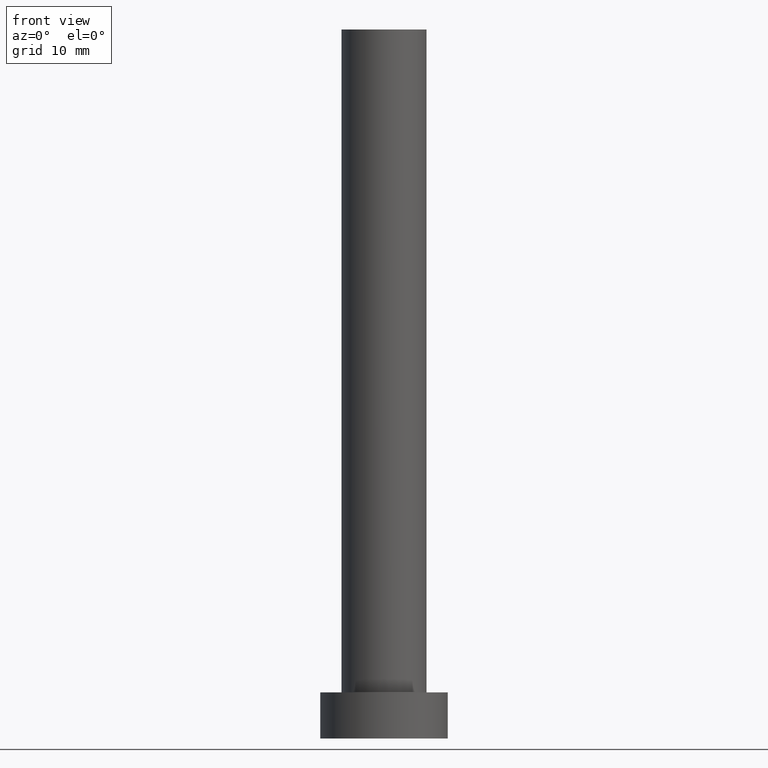
[diagram: clean part render]
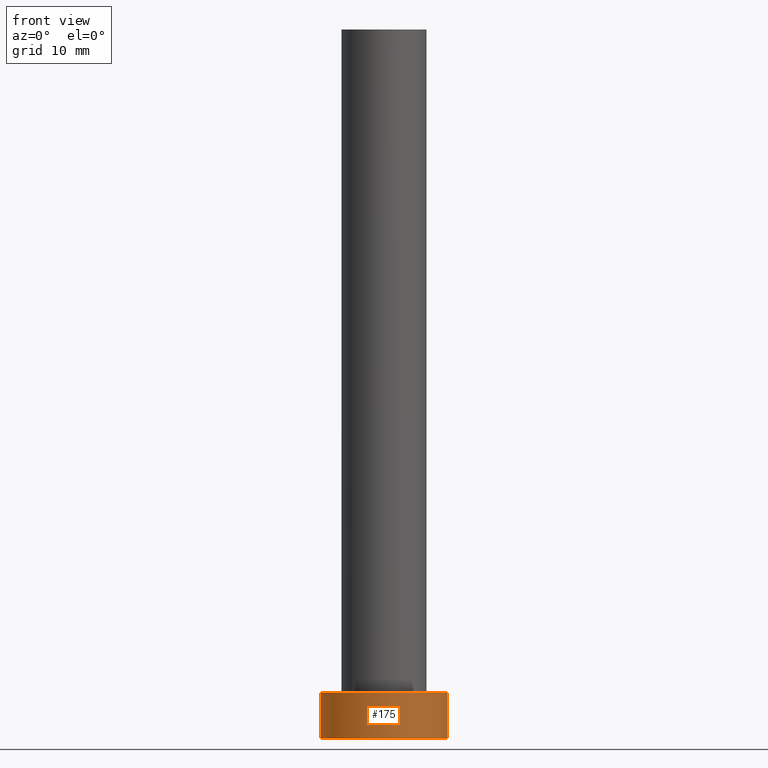
[diagram: same view with one face highlighted and labeled with its STEP entity id]
A machine part, front view. The second image highlights one B-rep face of the part: STEP entity #175.
In plain terms, the highlighted cylindrical surface (partial cylindrical patch) has radius 9 mm, axis along (-0, -0, -1).
Its self-contained STEP definition (entity closure, byte-faithful):
#2 = CARTESIAN_POINT ( 'NONE',  ( 9.000000000000000000, 1.102182119232617517E-15, 6.500000000000000000 ) ) ;
#3 = EDGE_CURVE ( 'NONE', #230, #40, #189, .T. ) ;
#8 = EDGE_CURVE ( 'NONE', #187, #230, #23, .T. ) ;
#12 = EDGE_CURVE ( 'NONE', #75, #40, #44, .T. ) ;
#13 = LINE ( 'NONE', #250, #249 ) ;
#16 = CARTESIAN_POINT ( 'NONE',  ( 9.000000000000000000, 1.102182119232617517E-15, 6.500000000000000000 ) ) ;
#23 = CIRCLE ( 'NONE', #115, 9.000000000000000000 ) ;
#32 = ORIENTED_EDGE ( 'NONE', *, *, #45, .T. ) ;
#34 = DIRECTION ( 'NONE',  ( 0.000000000000000000, 0.000000000000000000, 1.000000000000000000 ) ) ;
#40 = VERTEX_POINT ( 'NONE', #184 ) ;
#44 = CIRCLE ( 'NONE', #196, 9.000000000000000000 ) ;
#45 = EDGE_CURVE ( 'NONE', #187, #75, #13, .T. ) ;
#49 = CARTESIAN_POINT ( 'NONE',  ( -9.000000000000000000, 0.000000000000000000, 6.500000000000000000 ) ) ;
#57 = CARTESIAN_POINT ( 'NONE',  ( 0.000000000000000000, 0.000000000000000000, 6.500000000000000000 ) ) ;
#59 = EDGE_LOOP ( 'NONE', ( #179, #168, #32, #103 ) ) ;
#75 = VERTEX_POINT ( 'NONE', #111 ) ;
#77 = DIRECTION ( 'NONE',  ( -0.000000000000000000, -0.000000000000000000, -1.000000000000000000 ) ) ;
#93 = DIRECTION ( 'NONE',  ( 1.000000000000000000, 0.000000000000000000, 0.000000000000000000 ) ) ;
#103 = ORIENTED_EDGE ( 'NONE', *, *, #12, .T. ) ;
#108 = CARTESIAN_POINT ( 'NONE',  ( 0.000000000000000000, 0.000000000000000000, 0.000000000000000000 ) ) ;
#111 = CARTESIAN_POINT ( 'NONE',  ( -9.000000000000000000, 0.000000000000000000, 0.000000000000000000 ) ) ;
#115 = AXIS2_PLACEMENT_3D ( 'NONE', #57, #34, #124 ) ;
#118 = DIRECTION ( 'NONE',  ( -0.000000000000000000, -0.000000000000000000, -1.000000000000000000 ) ) ;
#124 = DIRECTION ( 'NONE',  ( 1.000000000000000000, 0.000000000000000000, 0.000000000000000000 ) ) ;
#168 = ORIENTED_EDGE ( 'NONE', *, *, #8, .F. ) ;
#173 = CYLINDRICAL_SURFACE ( 'NONE', #202, 9.000000000000000000 ) ;
#174 = FACE_OUTER_BOUND ( 'NONE', #59, .T. ) ;
#175 = ADVANCED_FACE ( 'NONE', ( #174 ), #173, .T. ) ;
#179 = ORIENTED_EDGE ( 'NONE', *, *, #3, .F. ) ;
#180 = VECTOR ( 'NONE', #226, 1000.000000000000000 ) ;
#184 = CARTESIAN_POINT ( 'NONE',  ( 9.000000000000000000, 1.102182119232617517E-15, 0.000000000000000000 ) ) ;
#187 = VERTEX_POINT ( 'NONE', #49 ) ;
#189 = LINE ( 'NONE', #16, #180 ) ;
#192 = DIRECTION ( 'NONE',  ( -1.000000000000000000, 0.000000000000000000, 0.000000000000000000 ) ) ;
#196 = AXIS2_PLACEMENT_3D ( 'NONE', #108, #247, #93 ) ;
#202 = AXIS2_PLACEMENT_3D ( 'NONE', #234, #118, #192 ) ;
#226 = DIRECTION ( 'NONE',  ( -0.000000000000000000, -0.000000000000000000, -1.000000000000000000 ) ) ;
#230 = VERTEX_POINT ( 'NONE', #2 ) ;
#234 = CARTESIAN_POINT ( 'NONE',  ( 0.000000000000000000, 0.000000000000000000, 6.500000000000000000 ) ) ;
#247 = DIRECTION ( 'NONE',  ( 0.000000000000000000, 0.000000000000000000, 1.000000000000000000 ) ) ;
#249 = VECTOR ( 'NONE', #77, 1000.000000000000000 ) ;
#250 = CARTESIAN_POINT ( 'NONE',  ( -9.000000000000000000, 0.000000000000000000, 6.500000000000000000 ) ) ;